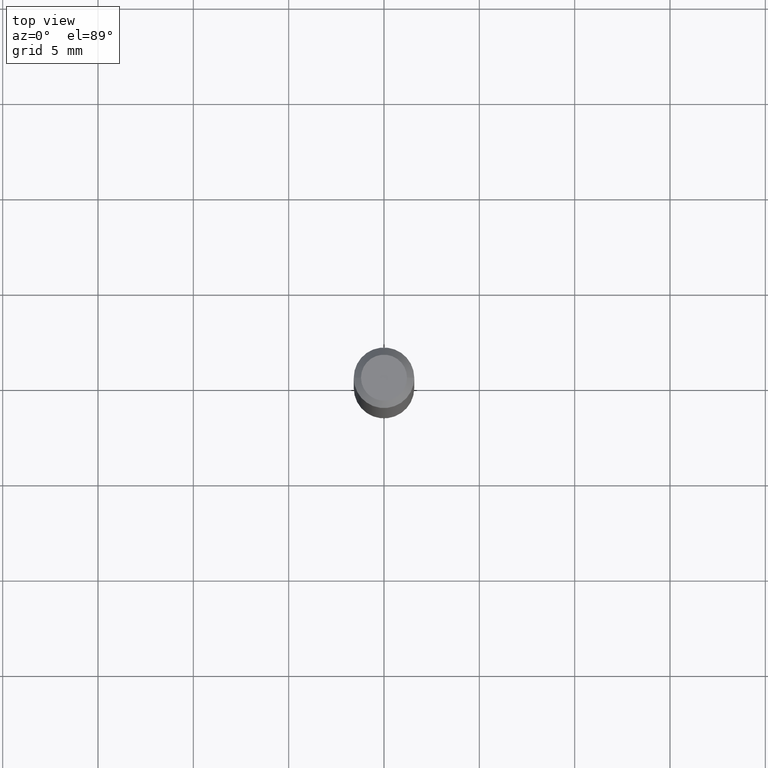
[diagram: clean part render]
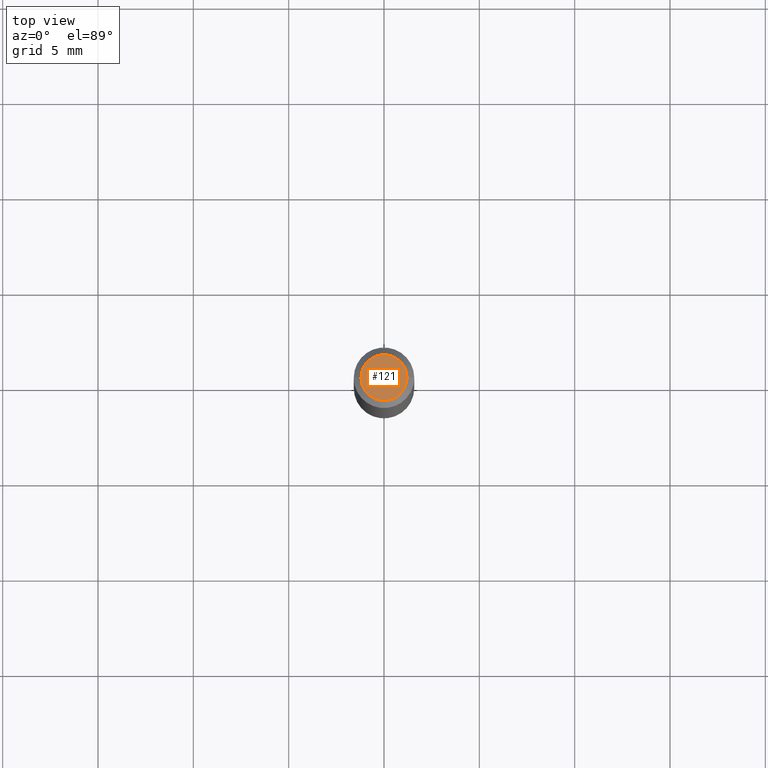
[diagram: same view with one face highlighted and labeled with its STEP entity id]
A machine part, top view. The second image highlights one B-rep face of the part: STEP entity #121.
In plain terms, the highlighted planar face has unit normal (0, -0, -1).
Its self-contained STEP definition (entity closure, byte-faithful):
#10 = ORIENTED_EDGE ( 'NONE', *, *, #422, .T. ) ;
#22 = DIRECTION ( 'NONE',  ( -2.445468806185136597E-29, 3.491481338843145583E-15, 1.000000000000000000 ) ) ;
#25 = CARTESIAN_POINT ( 'NONE',  ( -6.958212115706747638E-45, 9.934482783937485755E-31, 2.845348956448708805E-16 ) ) ;
#30 = DIRECTION ( 'NONE',  ( -2.445468806185136597E-29, 3.491481338843145583E-15, 1.000000000000000000 ) ) ;
#37 = EDGE_CURVE ( 'NONE', #134, #327, #176, .T. ) ;
#49 = AXIS2_PLACEMENT_3D ( 'NONE', #25, #30, #179 ) ;
#56 = DIRECTION ( 'NONE',  ( 1.000000000000000000, -6.982962677686267499E-15, 4.852736867747366768E-29 ) ) ;
#89 = CIRCLE ( 'NONE', #350, 0.04749999999999999362 ) ;
#92 = CARTESIAN_POINT ( 'NONE',  ( -6.958212115706747638E-45, 9.934482783937485755E-31, 2.845348956448708805E-16 ) ) ;
#101 = CARTESIAN_POINT ( 'NONE',  ( 3.316907271900976096E-16, 0.04749999999999999362, -2.357791577261395620E-17 ) ) ;
#107 = DIRECTION ( 'NONE',  ( -1.000000000000000000, 6.982962677686265922E-15, -4.876176775795935793E-29 ) ) ;
#121 = ADVANCED_FACE ( 'NONE', ( #355 ), #286, .F. ) ;
#134 = VERTEX_POINT ( 'NONE', #248 ) ;
#176 = CIRCLE ( 'NONE', #49, 0.04749999999999999362 ) ;
#179 = DIRECTION ( 'NONE',  ( 1.000000000000000000, -6.982962677686267499E-15, 4.852736867747366768E-29 ) ) ;
#248 = CARTESIAN_POINT ( 'NONE',  ( -0.04749999999999999362, 3.578768372314216422E-16, 2.845348956448684646E-16 ) ) ;
#265 = EDGE_LOOP ( 'NONE', ( #400, #10 ) ) ;
#286 = PLANE ( 'NONE',  #393 ) ;
#293 = CARTESIAN_POINT ( 'NONE',  ( 0.04749999999999999362, -4.035134999187574186E-16, 2.845348956448734443E-16 ) ) ;
#327 = VERTEX_POINT ( 'NONE', #293 ) ;
#350 = AXIS2_PLACEMENT_3D ( 'NONE', #92, #22, #56 ) ;
#355 = FACE_OUTER_BOUND ( 'NONE', #265, .T. ) ;
#393 = AXIS2_PLACEMENT_3D ( 'NONE', #101, #430, #107 ) ;
#400 = ORIENTED_EDGE ( 'NONE', *, *, #37, .T. ) ;
#422 = EDGE_CURVE ( 'NONE', #327, #134, #89, .T. ) ;
#430 = DIRECTION ( 'NONE',  ( 2.438088387897960049E-29, -3.491481338843145188E-15, -1.000000000000000000 ) ) ;